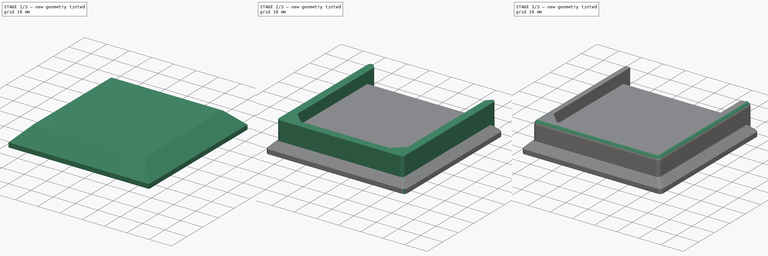
[diagram: build sequence overview — one tinted view per stage of 3, left to right]
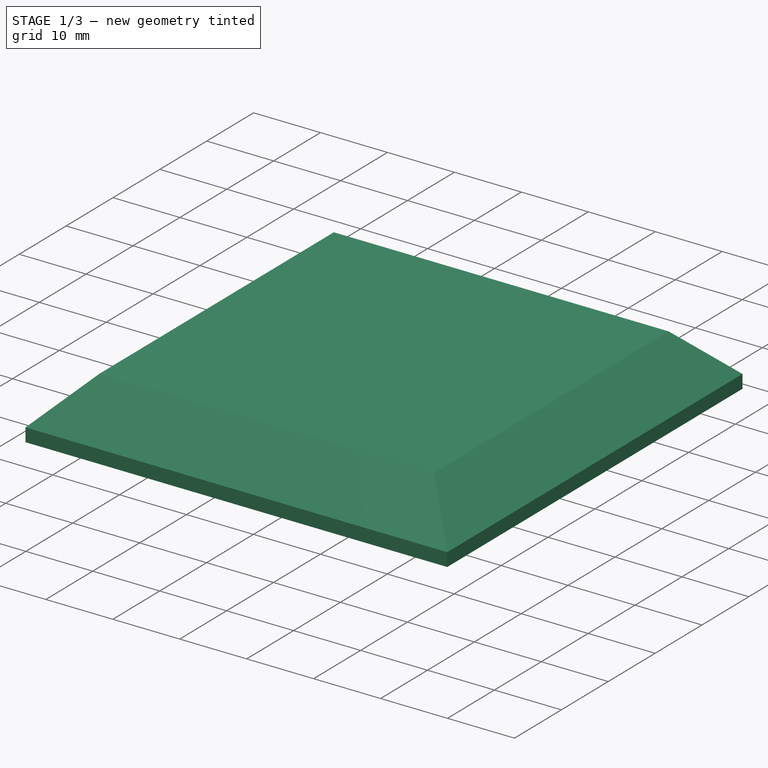
[diagram: stage 1 of 3 — iso view after this stage's code; geometry added in this stage tinted green]
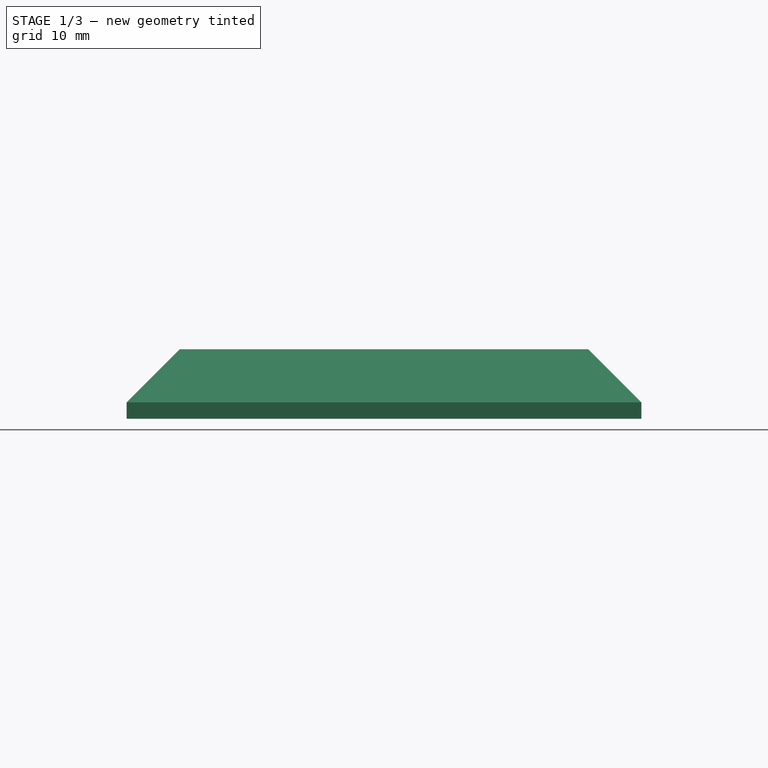
[diagram: stage 1 of 3 — front view after this stage's code; geometry added in this stage tinted green]
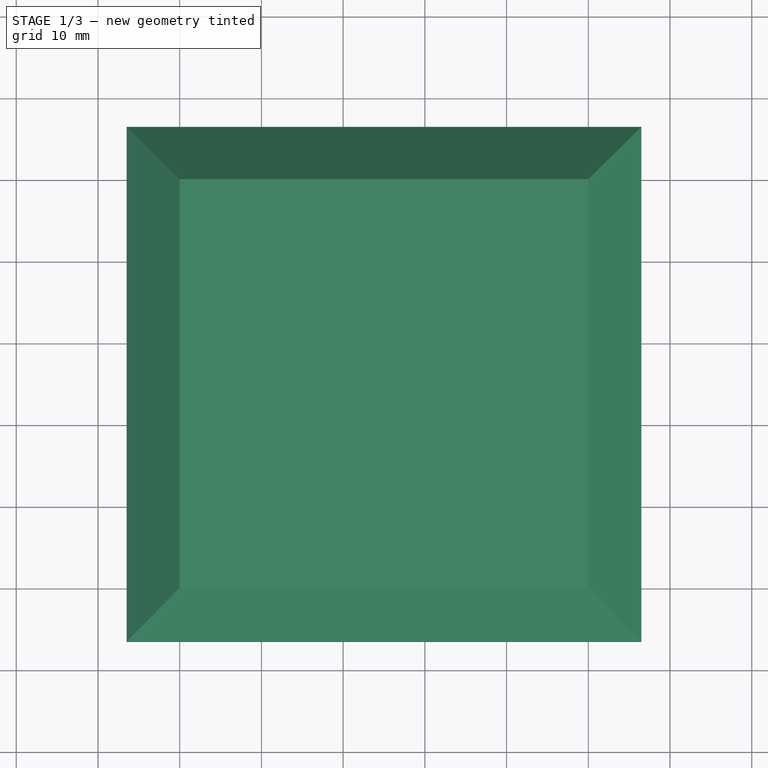
[diagram: stage 1 of 3 — top view after this stage's code; geometry added in this stage tinted green]
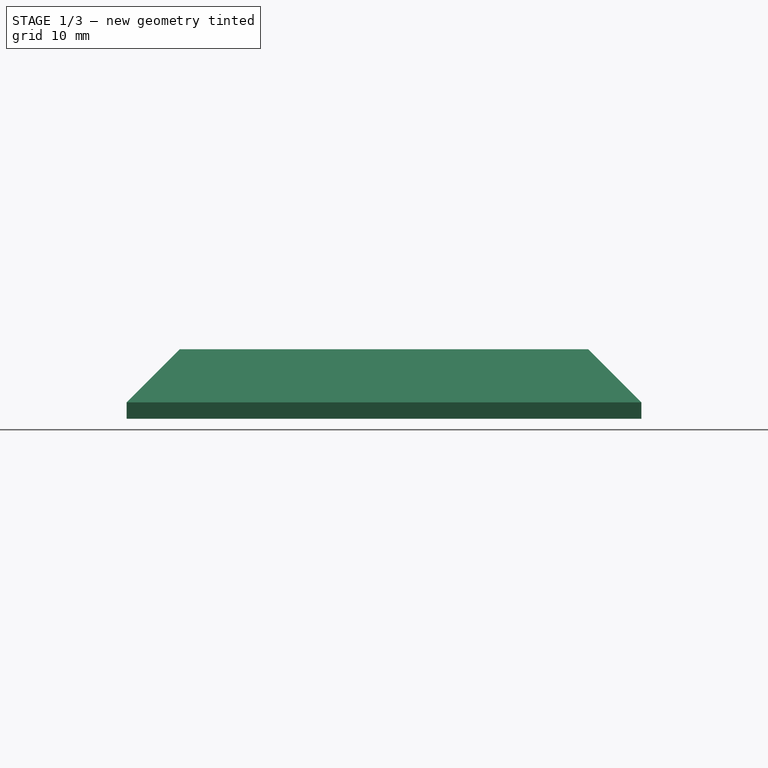
[diagram: stage 1 of 3 — right view after this stage's code; geometry added in this stage tinted green]
FCSTD DOCUMENT  (FreeCAD 1.1R20260325 (Git shallow))
Label: TableLegFoot
License: Creative Commons Attribution 4.0
objects: Sketcher::SketchObject×3, PartDesign::Pad×3, PartDesign::Fillet×2, App::Point×1, PartDesign::Pocket×1, PartDesign::Body×1
note: 25 computed .brp shape members not serialized (recipe doc carries the construction recipe); baked Part::Feature solids carry a one-line shape summary decoded from their .brp

FEATURE [App::Point] Origin001
  Role = Origin
FEATURE [Sketcher::SketchObject] Sketch
  ArcFitTolerance = 1e-06
  AttachmentSupport = -> [Origin]
  ExternalTypes = [0]
  FullyConstrained = true
  MakeInternals = false
  MapMode = 5
  _ExternalGeoVersion = 1
  sketch-geometry (4):
    g0: LineSegment StartX=0 StartY=0 StartZ=0 EndX=50 EndY=0 EndZ=0
    g1: LineSegment StartX=50 StartY=0 StartZ=0 EndX=50 EndY=50 EndZ=0
    g2: LineSegment StartX=50 StartY=50 StartZ=0 EndX=0 EndY=50 EndZ=0
    g3: LineSegment StartX=0 StartY=50 StartZ=0 EndX=0 EndY=0 EndZ=0
  constraints (11):
    c: Coincident(g0,g1)
    c: Coincident(g1,g2)
    c: Coincident(g2,g3)
    c: Coincident(g3,g0)
    c: Horizontal(g0)
    c: Horizontal(g2)
    c: Vertical(g1)
    c: Vertical(g3)
    c: Distance(g1,g3) = 50
    c: Distance(g0,g2) = 50
    c: Coincident(g0,g-1)
FEATURE [PartDesign::Pad] Pad
  Direction = (0,0,1)
  Length = 6.5
  Length2 = 10
  Profile = -> Sketch
  ReferenceAxis = -> Sketch [N_Axis]
  Reversed = true
  SideType = 0
  Suppressed = false
  TaperAngle = 45
  Type = 0
  Type2 = 0
FEATURE [PartDesign::Pad] Pad001
  BaseFeature = -> Pad
  Direction = (0,0,-1)
  Length = 2
  Length2 = 10
  Profile = -> Pad [Face6]
  SideType = 0
  Suppressed = false
  Type = 0
  Type2 = 0
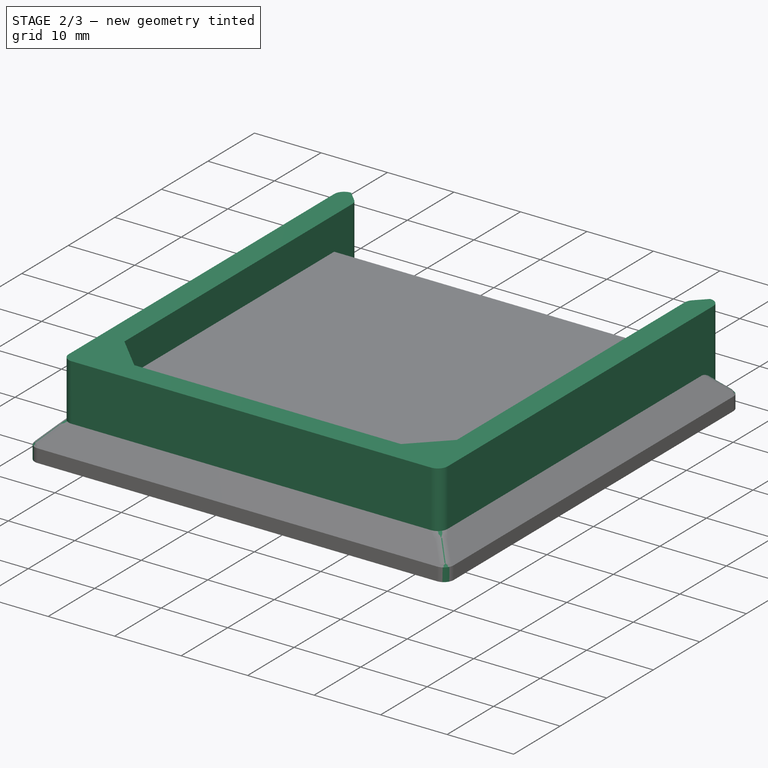
[diagram: stage 2 of 3 — iso view after this stage's code; geometry added in this stage tinted green]
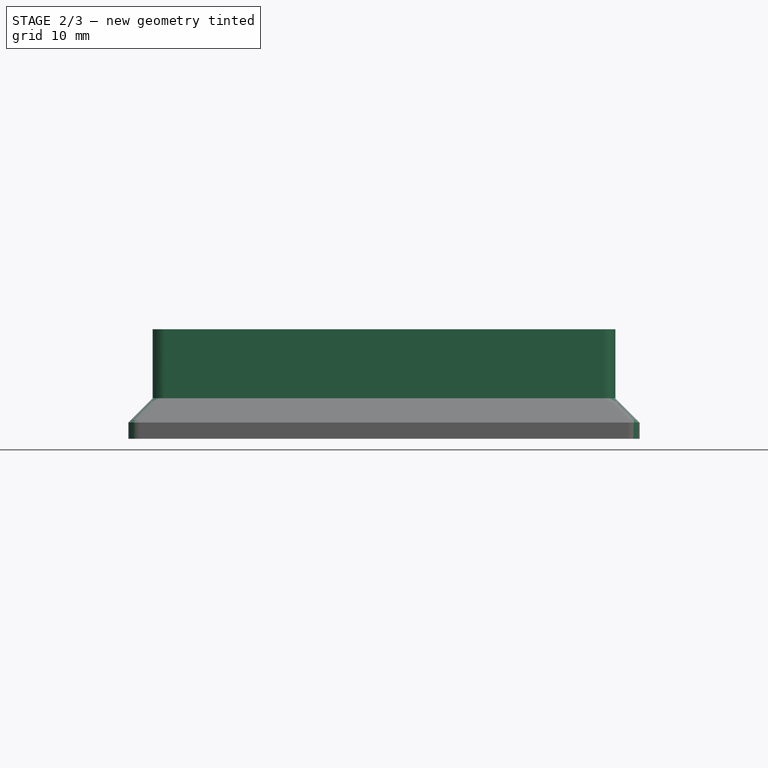
[diagram: stage 2 of 3 — front view after this stage's code; geometry added in this stage tinted green]
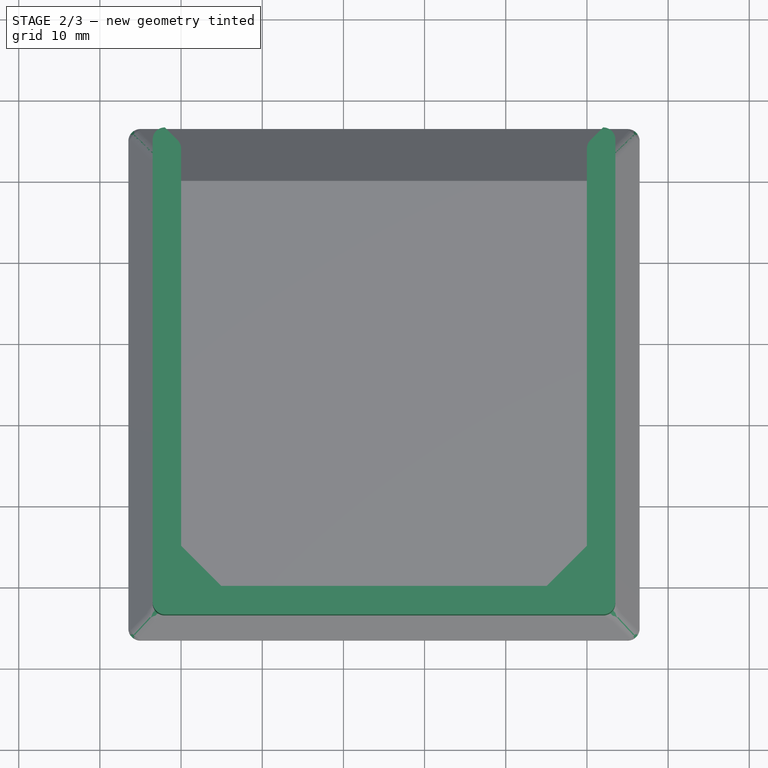
[diagram: stage 2 of 3 — top view after this stage's code; geometry added in this stage tinted green]
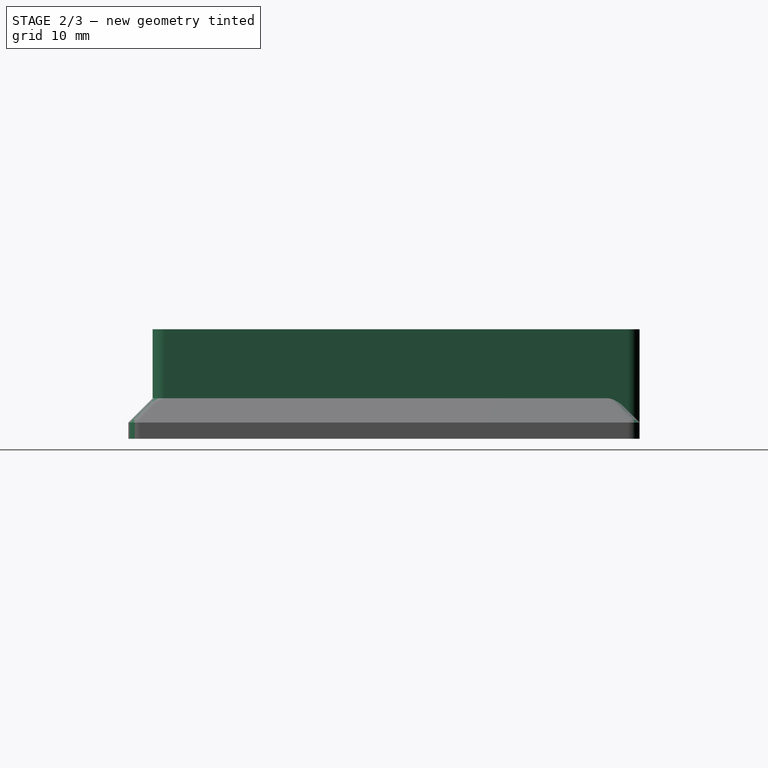
[diagram: stage 2 of 3 — right view after this stage's code; geometry added in this stage tinted green]
FEATURE [Sketcher::SketchObject] Sketch001
  ArcFitTolerance = 1e-06
  AttachmentSupport = -> [Pad001]
  ExternalGeometry = -> [Pad001]
  ExternalTypes = [0,0,0,0,0]
  FullyConstrained = true
  MakeInternals = false
  MapMode = 5
  _ExternalGeoVersion = 1
  sketch-geometry (12):
    g0: LineSegment StartX=4.94975 StartY=-4.4e-15 StartZ=0 EndX=0 EndY=4.94975 EndZ=0
    g1: LineSegment StartX=0 StartY=54.5 StartZ=0 EndX=-2 EndY=56.5 EndZ=0
    g2: LineSegment StartX=-3.5 StartY=56.5 StartZ=0 EndX=-3.5 EndY=-3.5 EndZ=0
    g3: LineSegment StartX=-3.5 StartY=-3.5 StartZ=0 EndX=53.5 EndY=-3.5 EndZ=0
    g4: LineSegment StartX=53.5 StartY=-3.5 StartZ=0 EndX=53.5 EndY=56.5 EndZ=0
    g5: LineSegment StartX=53.5 StartY=56.5 StartZ=0 EndX=52 EndY=56.5 EndZ=0
    g6: LineSegment StartX=50 StartY=54.5 StartZ=0 EndX=50 EndY=4.94975 EndZ=0
    g7: LineSegment StartX=50 StartY=4.94975 StartZ=0 EndX=45.0503 EndY=-4.4e-15 EndZ=0
    g8: LineSegment StartX=-2 StartY=56.5 StartZ=0 EndX=-3.5 EndY=56.5 EndZ=0
    g9: LineSegment StartX=52 StartY=56.5 StartZ=0 EndX=50 EndY=54.5 EndZ=0
    g10: LineSegment StartX=0 StartY=4.94975 StartZ=0 EndX=0 EndY=54.5 EndZ=0
    g11: LineSegment StartX=45.0503 StartY=-4.4e-15 StartZ=0 EndX=4.94975 EndY=-4.4e-15 EndZ=0
  constraints (36):
    c: Coincident(g10,g1)
    c: PointOnObject(g8,g-3)
    c: Coincident(g8,g2)
    c: Vertical(g2)
    c: Coincident(g2,g3)
    c: Horizontal(g3)
    c: Coincident(g3,g4)
    c: Vertical(g4)
    c: Coincident(g4,g5)
    c: Coincident(g9,g6)
    c: Vertical(g6)
    c: Angle(g2,g1) = 0.785398
    c: PointOnObject(g2,g-6)
    c: PointOnObject(g3,g-7)
    c: PointOnObject(g4,g-3)
    c: Coincident(g1,g8)
    c: PointOnObject(g1,g-3)
    c: DistanceX(g8,g8) = 1.5
    c: Coincident(g5,g9)
    c: Equal(g5,g8)
    c: PointOnObject(g5,g-3)
    c: Horizontal(g10,g6)
    c: Vertical(g10)
    c: Coincident(g0,g10)
    c: PointOnObject(g0,g-5)
    c: Coincident(g0,g11)
    c: Distance(g0) = 7
    c: Angle(g-5,g0) = 0.785398
    c: Horizontal(g11)
    c: Coincident(g7,g11)
    c: PointOnObject(g6,g-4)
    c: Coincident(g6,g7)
    c: Horizontal(g0,g6)
    c: Equal(g0,g7)
    c: DistanceX(g6,g4) = 3.5
    c: DistanceY(g3,g7) = 3.5
FEATURE [PartDesign::Pad] Pad002
  BaseFeature = -> Pad001
  Direction = (0,0,1)
  Length = 5
  Length2 = 10
  Profile = -> Sketch001
  ReferenceAxis = -> Sketch001 [N_Axis]
  Refine = true
  SideType = 1
  Suppressed = false
  Type = 0
  Type2 = 2
FEATURE [PartDesign::Fillet] Fillet
  Base = -> Pad002 [Edge11,Edge18,Edge23,Edge45,Edge47,Edge36,Edge14,Edge3,Edge8,Edge16,Edge24,Edge44,Edge5,Edge7]
  BaseFeature = -> Pad002
  Radius = 1.49
  SupportTransform = false
  Suppressed = false
  UseAllEdges = false
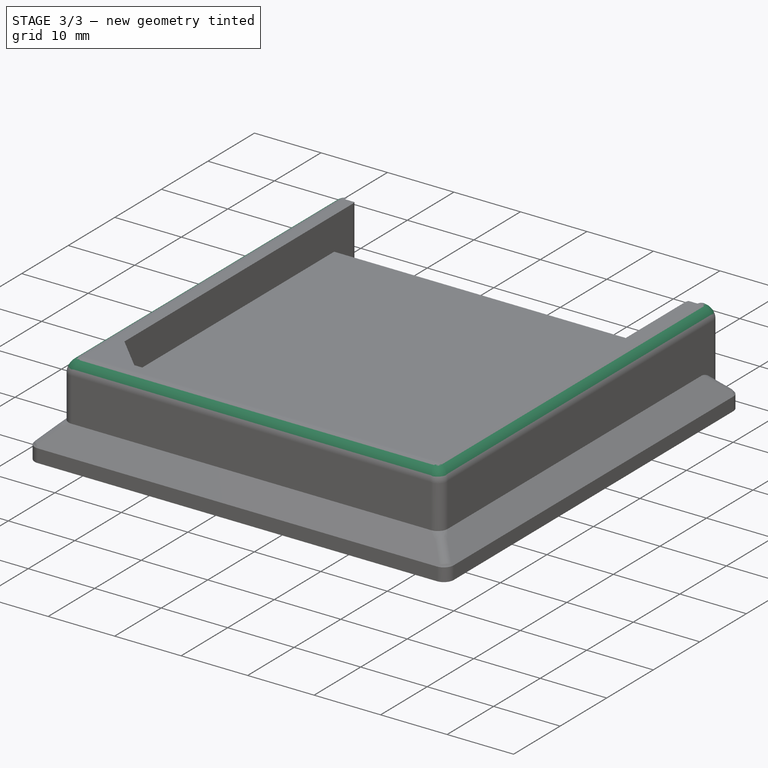
[diagram: stage 3 of 3 — iso view after this stage's code; geometry added in this stage tinted green]
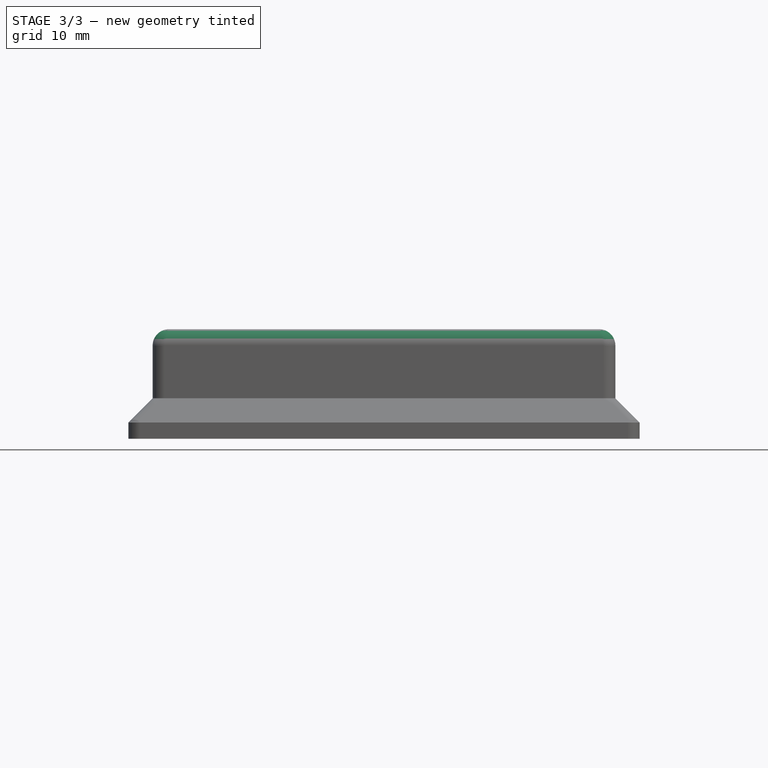
[diagram: stage 3 of 3 — front view after this stage's code; geometry added in this stage tinted green]
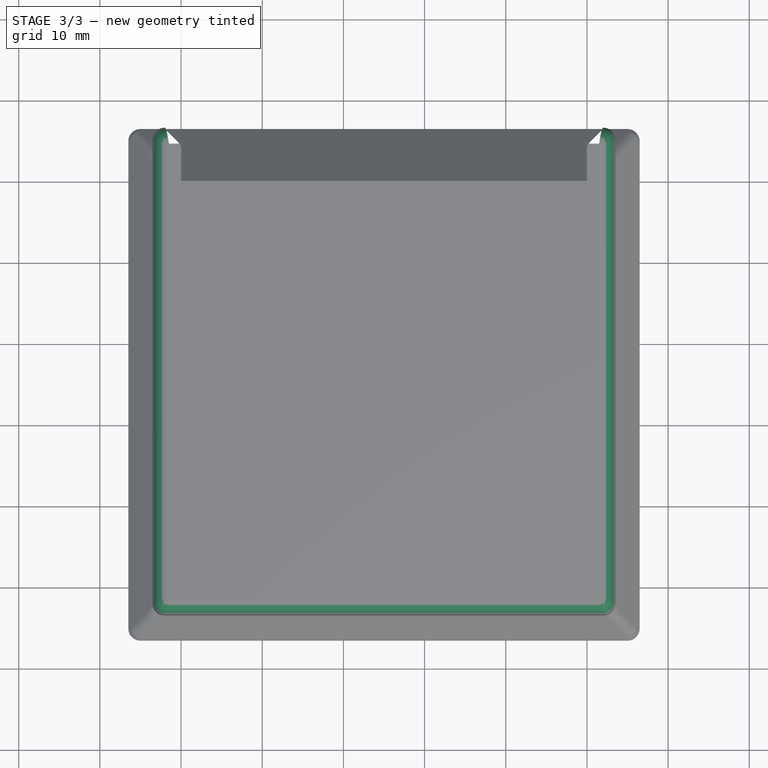
[diagram: stage 3 of 3 — top view after this stage's code; geometry added in this stage tinted green]
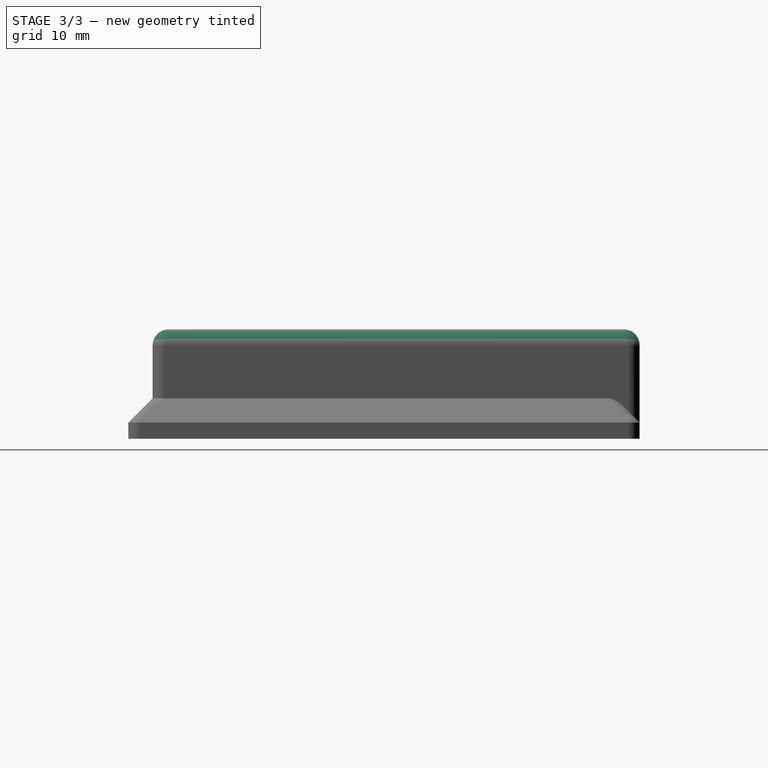
[diagram: stage 3 of 3 — right view after this stage's code; geometry added in this stage tinted green]
FEATURE [PartDesign::Fillet] Fillet001
  Base = -> Fillet [Edge39]
  BaseFeature = -> Fillet
  Radius = 2
  SupportTransform = false
  Suppressed = false
  UseAllEdges = false
FEATURE [Sketcher::SketchObject] Sketch002
  ArcFitTolerance = 1e-06
  AttachmentSupport = -> [Fillet001]
  ExternalGeometry = -> [Fillet001]
  ExternalTypes = [0,0]
  FullyConstrained = true
  MakeInternals = false
  MapMode = 5
  Placement = pos=(0,0,-8.5) rot=(1,0,0;3.14159rad)
  _ExternalGeoVersion = 1
  sketch-geometry (6):
    g0: GeomPoint [constr] X=25 Y=-25 Z=0
    g1: LineSegment StartX=-2.6 StartY=-52.6 StartZ=0 EndX=52.6 EndY=-52.6 EndZ=0
    g2: LineSegment StartX=52.6 StartY=-52.6 StartZ=0 EndX=52.6 EndY=2.6 EndZ=0
    g3: LineSegment StartX=52.6 StartY=2.6 StartZ=0 EndX=-2.6 EndY=2.6 EndZ=0
    g4: LineSegment StartX=-2.6 StartY=2.6 StartZ=0 EndX=-2.6 EndY=-52.6 EndZ=0
    g5: GeomPoint [constr] X=25 Y=-25 Z=0
  constraints (13):
    c: Symmetric(g-3,g-4,g0)
    c: Coincident(g1,g2)
    c: Coincident(g2,g3)
    c: Coincident(g3,g4)
    c: Coincident(g4,g1)
    c: Horizontal(g1)
    c: Horizontal(g3)
    c: Vertical(g2)
    c: Vertical(g4)
    c: Symmetric(g3,g1,g5)
    c: Distance(g2,g4) = 55.2
    c: Distance(g1,g3) = 55.2
    c: Coincident(g5,g0)
FEATURE [PartDesign::Pocket] Pocket
  BaseFeature = -> Fillet001
  Direction = (0,0,1)
  Length = 3
  Length2 = 5
  Profile = -> Sketch002
  ReferenceAxis = -> Sketch002 [N_Axis]
  SideType = 0
  Suppressed = false
  Type = 0
  Type2 = 0
FEATURE [PartDesign::Body] Body  label="Foot"
  AllowCompound = false
  Group = -> [Sketch,Pad,Pad001,Sketch001,Pad002,Fillet,Fillet001,Sketch002,Pocket]
  Origin = -> Origin
  Tip = -> Pocket
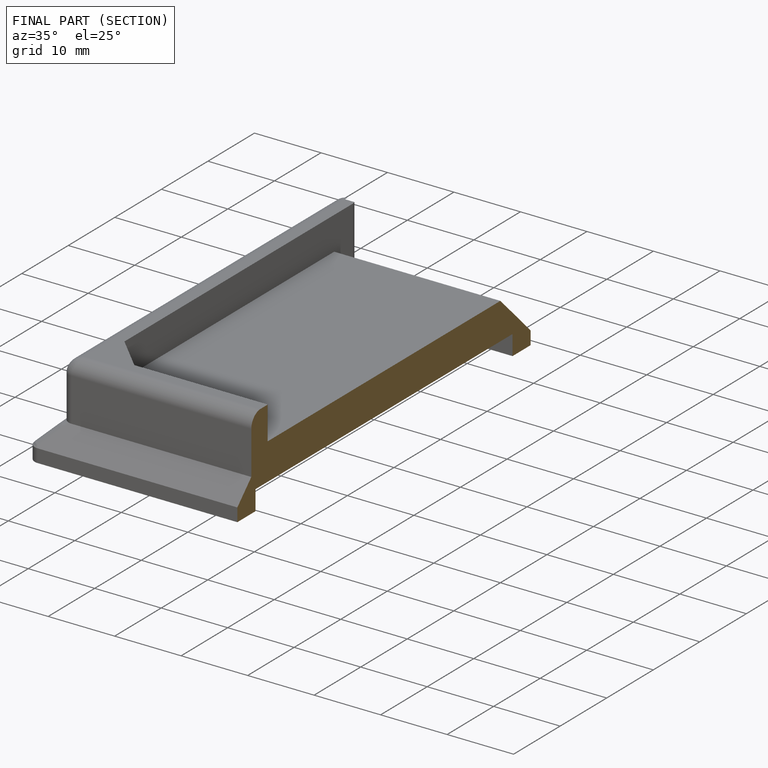
[diagram: finished part — half-section view (interior)]
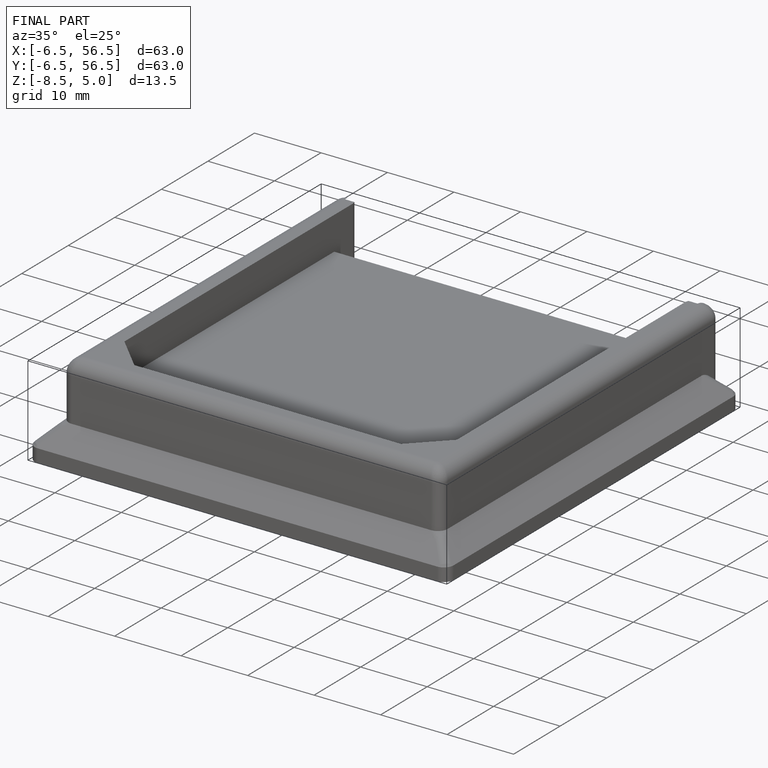
[diagram: finished part — iso view with bounding-box wireframe]
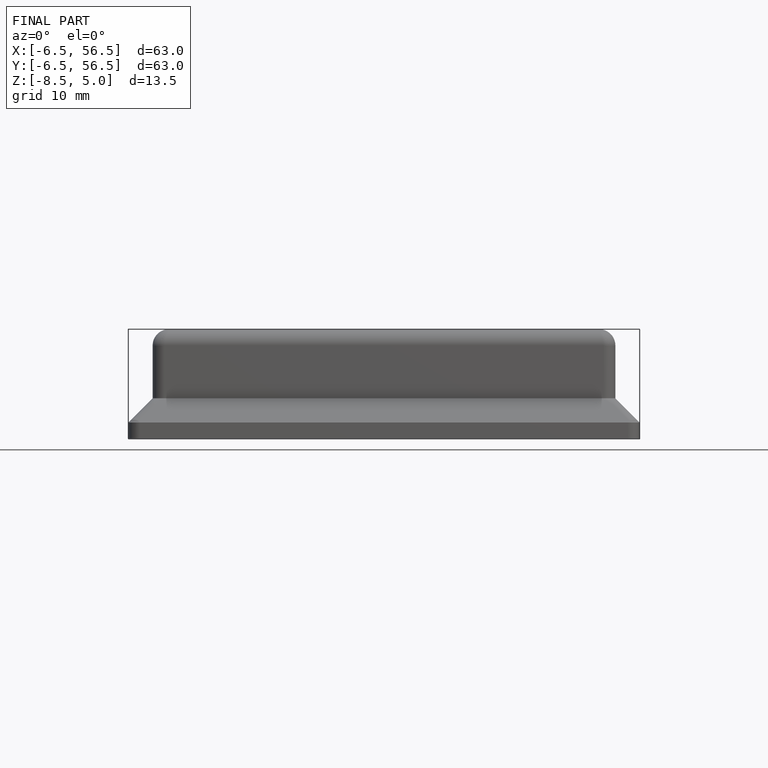
[diagram: finished part — front view with bounding-box wireframe]
